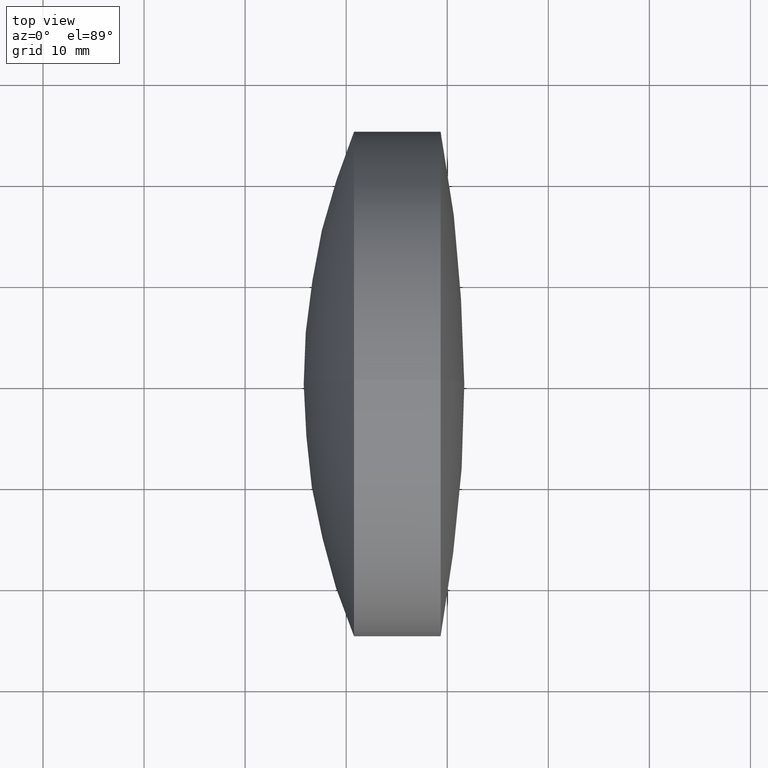
[diagram: clean part render]
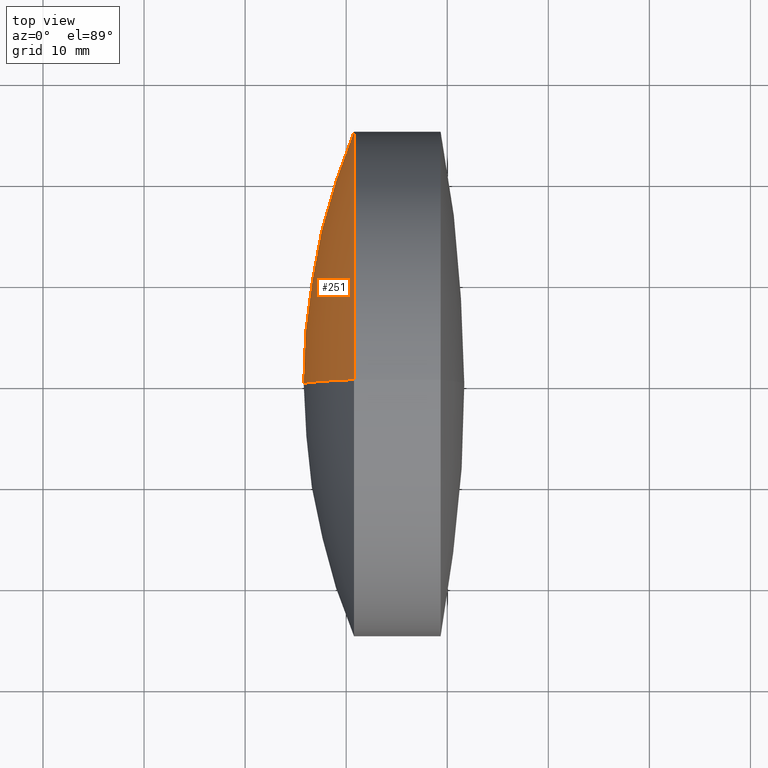
[diagram: same view with one face highlighted and labeled with its STEP entity id]
A machine part, top view. The second image highlights one B-rep face of the part: STEP entity #251.
In plain terms, the highlighted spherical surface has radius 65.26 mm.
Its self-contained STEP definition (entity closure, byte-faithful):
#9 = DIRECTION ( 'NONE',  ( -0.0000000000000000000, 1.000000000000000000, 1.224646799147353200E-016 ) ) ;
#14 = CIRCLE ( 'NONE', #323, 24.99999999999999300 ) ;
#20 = ORIENTED_EDGE ( 'NONE', *, *, #142, .T. ) ;
#40 = DIRECTION ( 'NONE',  ( 0.0000000000000000000, 0.0000000000000000000, -1.000000000000000000 ) ) ;
#60 = VERTEX_POINT ( 'NONE', #65 ) ;
#65 = CARTESIAN_POINT ( 'NONE',  ( 220.7738858347917100, 3.061616997868383800E-015, -25.00000000000001400 ) ) ;
#71 = DIRECTION ( 'NONE',  ( 0.0000000000000000000, 0.0000000000000000000, 1.000000000000000000 ) ) ;
#83 = EDGE_CURVE ( 'NONE', #60, #90, #301, .T. ) ;
#90 = VERTEX_POINT ( 'NONE', #310 ) ;
#97 = CARTESIAN_POINT ( 'NONE',  ( 281.0554551574296100, 0.0000000000000000000, -3.469446951953614200E-015 ) ) ;
#98 = AXIS2_PLACEMENT_3D ( 'NONE', #272, #120, #40 ) ;
#114 = ORIENTED_EDGE ( 'NONE', *, *, #83, .T. ) ;
#120 = DIRECTION ( 'NONE',  ( 0.0000000000000000000, -1.000000000000000000, 0.0000000000000000000 ) ) ;
#126 = EDGE_LOOP ( 'NONE', ( #20, #114, #285 ) ) ;
#128 = VERTEX_POINT ( 'NONE', #284 ) ;
#134 = DIRECTION ( 'NONE',  ( 0.0000000000000000000, 0.0000000000000000000, 1.000000000000000000 ) ) ;
#142 = EDGE_CURVE ( 'NONE', #128, #60, #14, .T. ) ;
#198 = FACE_OUTER_BOUND ( 'NONE', #126, .T. ) ;
#202 = DIRECTION ( 'NONE',  ( 0.0000000000000000000, 1.000000000000000000, 0.0000000000000000000 ) ) ;
#226 = AXIS2_PLACEMENT_3D ( 'NONE', #97, #202, #71 ) ;
#246 = CARTESIAN_POINT ( 'NONE',  ( 220.7738858347917100, 0.0000000000000000000, 0.0000000000000000000 ) ) ;
#251 = ADVANCED_FACE ( 'NONE', ( #198 ), #264, .T. ) ;
#264 = SPHERICAL_SURFACE ( 'NONE', #226, 65.25999999999997700 ) ;
#268 = EDGE_CURVE ( 'NONE', #128, #90, #338, .T. ) ;
#272 = CARTESIAN_POINT ( 'NONE',  ( 281.0554551574296100, 0.0000000000000000000, -3.469446951953614200E-015 ) ) ;
#284 = CARTESIAN_POINT ( 'NONE',  ( 220.7738858347917100, 0.0000000000000000000, 25.00000000000000700 ) ) ;
#285 = ORIENTED_EDGE ( 'NONE', *, *, #268, .F. ) ;
#299 = AXIS2_PLACEMENT_3D ( 'NONE', #329, #9, #314 ) ;
#301 = CIRCLE ( 'NONE', #299, 65.25999999999997700 ) ;
#310 = CARTESIAN_POINT ( 'NONE',  ( 215.7954551574295900, 0.0000000000000000000, 5.265755536641978500E-016 ) ) ;
#314 = DIRECTION ( 'NONE',  ( 0.0000000000000000000, -1.224646799147353200E-016, 1.000000000000000000 ) ) ;
#323 = AXIS2_PLACEMENT_3D ( 'NONE', #246, #331, #134 ) ;
#329 = CARTESIAN_POINT ( 'NONE',  ( 281.0554551574296100, 0.0000000000000000000, -3.469446951953614200E-015 ) ) ;
#331 = DIRECTION ( 'NONE',  ( -1.000000000000000000, -0.0000000000000000000, -0.0000000000000000000 ) ) ;
#338 = CIRCLE ( 'NONE', #98, 65.25999999999997700 ) ;